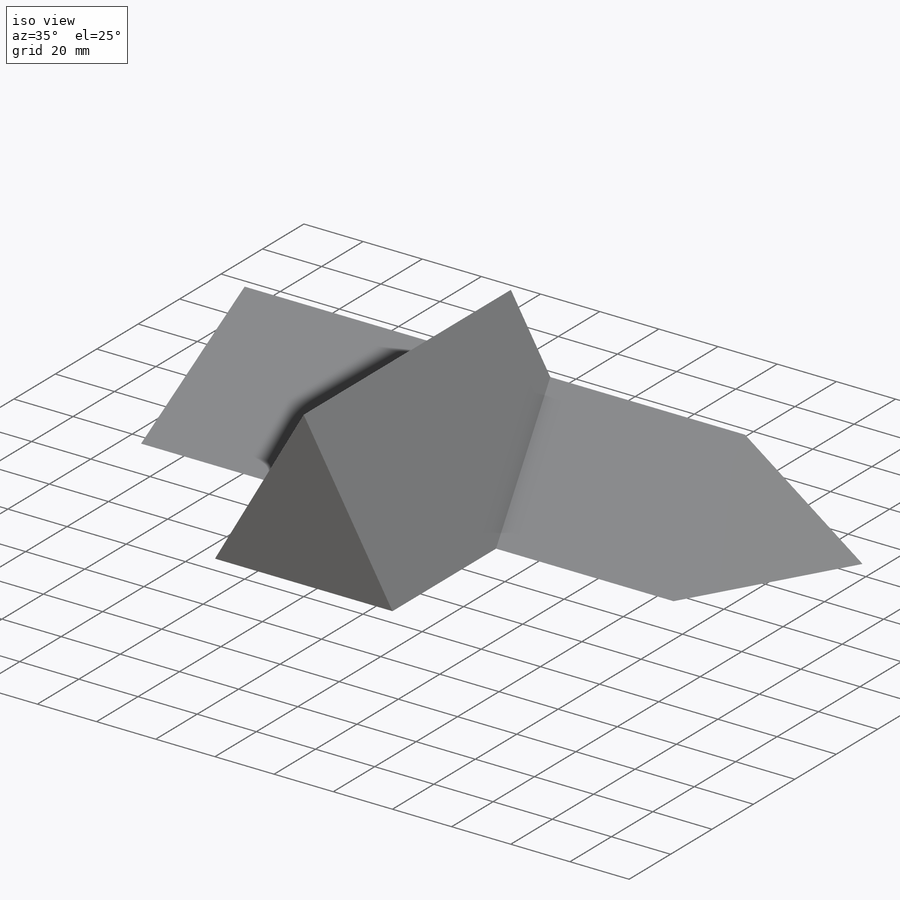
[diagram: iso view]
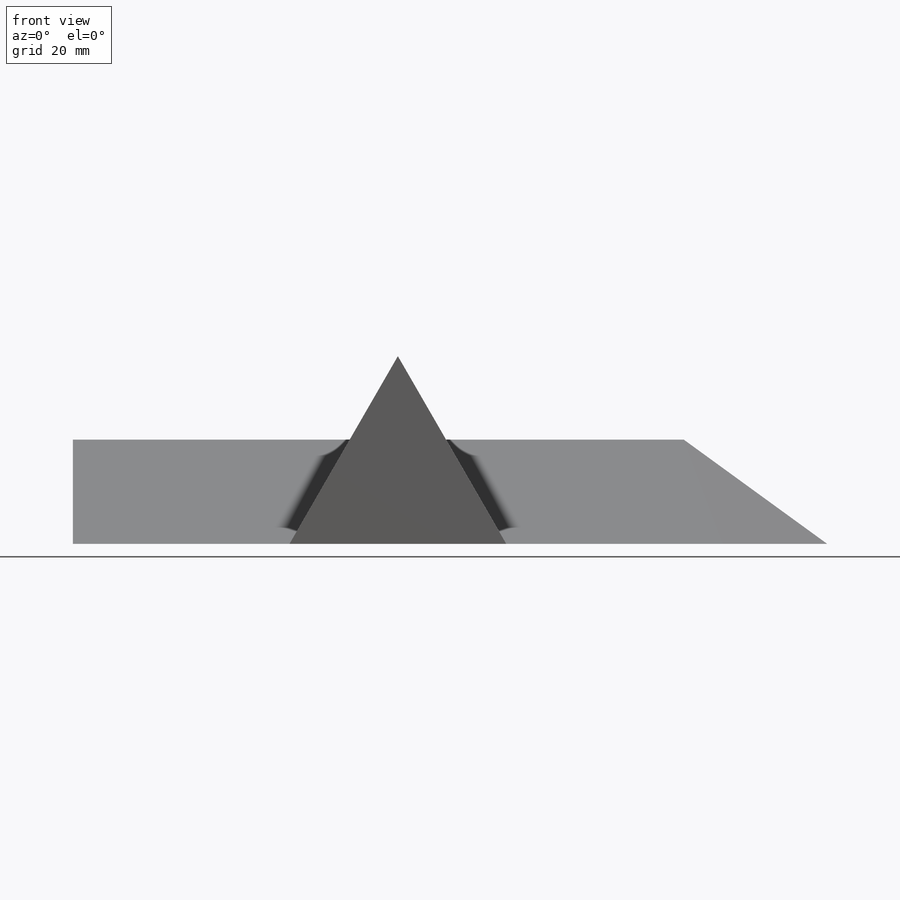
[diagram: front view]
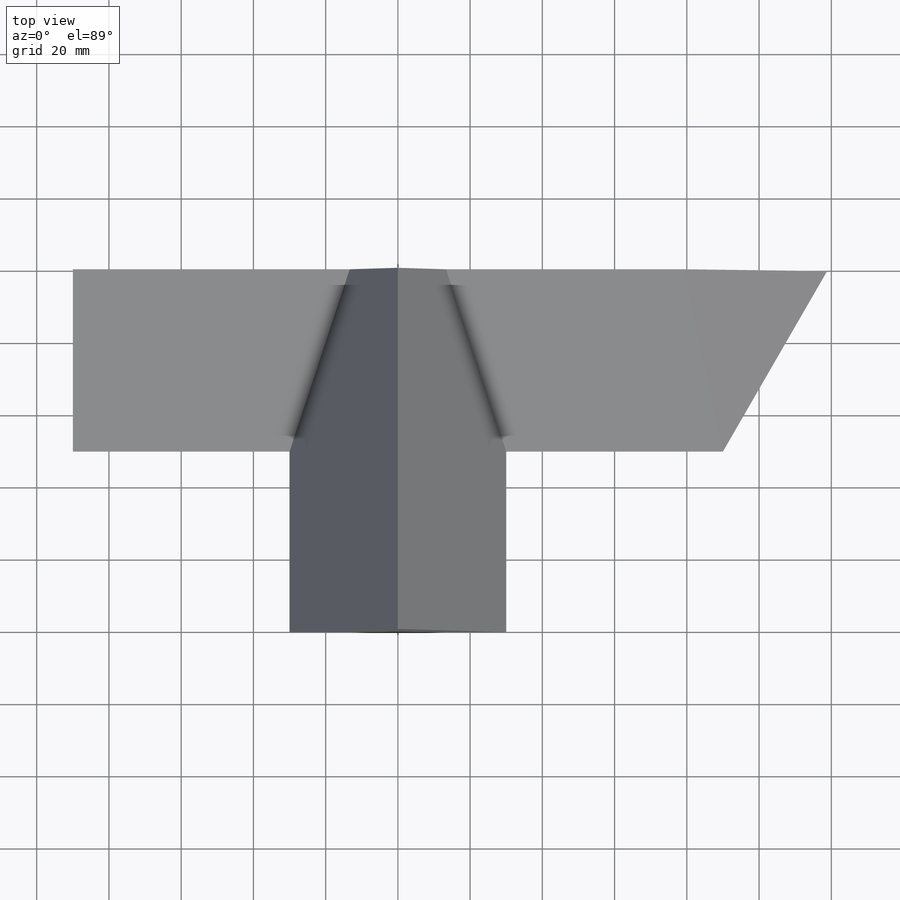
[diagram: top view]
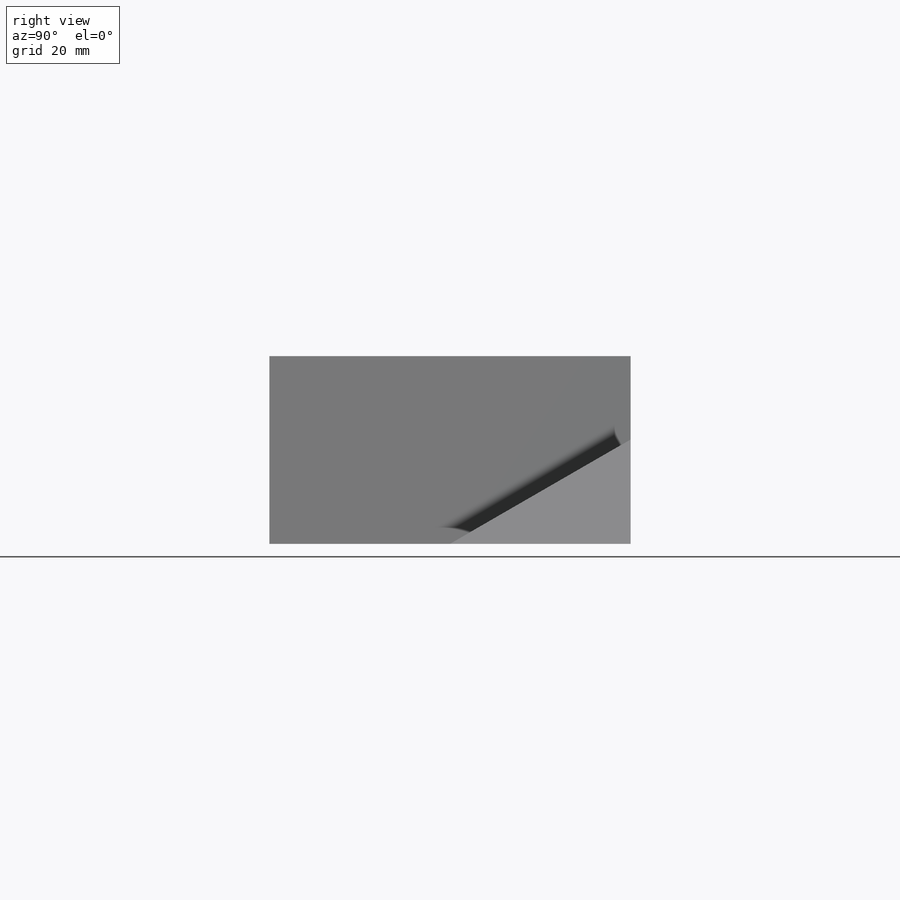
[diagram: right view]
SOLIDWORKS PART (.sldprt)
format: sldprt  version: not decoded by parser v0  size: 189,440 bytes
history: native  units: mm
features: sketch x6, plane x3, extrude x2, material x1, cut_extrude x1 (+16 scaffold rows collapsed)
feature tree (29):
  scaffold x16  (default folders/planes/origin — collapsed)
  material  "Material <not specified>"
  sketch  "Sketch1"  dims[c1.D1=60.0mm c1.D2=30.0mm c1.D3=~51.115581mm c2.D3=60.0deg]
  extrude  "Extrude1"  Depth=100mm
  sketch  "Sketch2"  dims[c1.D1=~40.861925mm c2.D1=30.0deg c2.D2=50.0mm]
  extrude  "Extrude2"  Depth=180mm
  sketch  "Sketch3"  dims[c1.D1=~51.72153mm c2.D1=30.0deg]
  plane  "Plane1"
  sketch  "Sketch4"
  plane  "Plane2"
  sketch  "Sketch5"  dims[c1.D1=~27.35525mm c2.D1=40.0deg]
  cut_extrude  "Extrude3"  Depth=180mm
  sketch  "Sketch8"  dims[c1.D1=50.0mm c2.D1=30.0deg]
  plane  "AB DIhedral Angle Plane"
decode coverage: 8 of 9 modeling features carry decoded parameters
note: ~ marks probable driven/reference dimensions
note: suppression state not decoded; provenance and decode notes live in map.json
